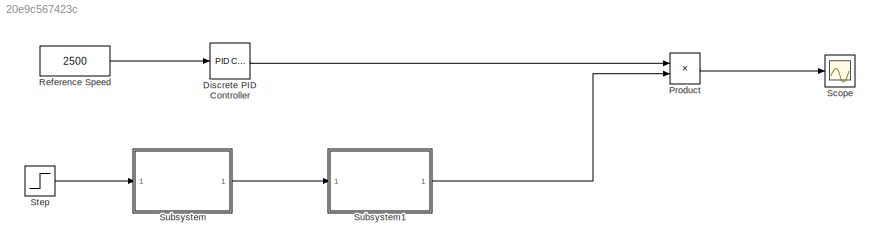
MODEL slx_20e9c567423c
KIND model
CONFIG AbsTol = auto
CONFIG EnableMultiTasking = off
CONFIG FixedStep = auto
CONFIG MaxStep = auto
CONFIG MinStep = auto
CONFIG RelTol = 1e-3
CONFIG SampleTimeConstraint = Unconstrained
CONFIG Solver = VariableStepAuto
CONFIG SolverName = VariableStepAuto
CONFIG StartTime = 0.0
CONFIG StopTime = 10.0
BLOCK [Reference] Discrete PID Controller  REF=simulink/Continuous/PID Controller
  Ports = [1, 1]
  SourceBlock = simulink/Continuous/PID Controller
  SourceProductBaseCode = SL
  SourceType = PID 1dof
BLOCK [Product] Product
  Ports = [2, 1]
BLOCK [Constant] Reference Speed
  Value = 2500
BLOCK [Scope] Scope
  Floating = off
  NumInputPorts = 1
  Ports = [1]
  ScopeSpecificationString = Simulink.scopes.TimeScopeBlockCfg('CurrentConfiguration', extmgr.ConfigurationSet(extmgr.Configuration('Core','General UI',true),extmgr.Configuration('Core','Source UI',true),extmgr.Configuration('Sources','WiredSimulink',true),extmgr.Configuration('Visuals','Time Domain',true,'SerializedDisplays',{struct('MinYLimReal','-1.00000','MaxYLimReal','1.00000','YLabelReal','','MinYLimMag','0.00000','MaxY...<+1389ch>
BLOCK [Step] Step
  SampleTime = 0
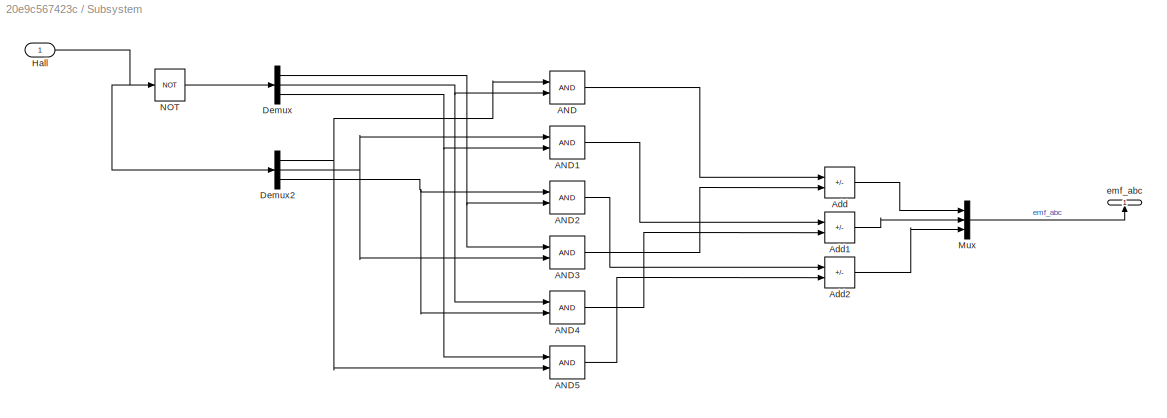
BLOCK [SubSystem] Subsystem
  Ports = [1, 1]
  RequestExecContextInheritance = off
BLOCK [Logic] Subsystem/AND
  AllPortsSameDT = off
  OutDataTypeStr = boolean
  Ports = [2, 1]
BLOCK [Logic] Subsystem/AND1
  AllPortsSameDT = off
  OutDataTypeStr = boolean
  Ports = [2, 1]
BLOCK [Logic] Subsystem/AND2
  AllPortsSameDT = off
  OutDataTypeStr = boolean
  Ports = [2, 1]
BLOCK [Logic] Subsystem/AND3
  AllPortsSameDT = off
  OutDataTypeStr = boolean
  Ports = [2, 1]
BLOCK [Logic] Subsystem/AND4
  AllPortsSameDT = off
  OutDataTypeStr = boolean
  Ports = [2, 1]
BLOCK [Logic] Subsystem/AND5
  AllPortsSameDT = off
  OutDataTypeStr = boolean
  Ports = [2, 1]
BLOCK [Sum] Subsystem/Add
  IconShape = rectangular
  Inputs = +-
  Ports = [2, 1]
BLOCK [Sum] Subsystem/Add1
  IconShape = rectangular
  Inputs = +-
  Ports = [2, 1]
BLOCK [Sum] Subsystem/Add2
  IconShape = rectangular
  Inputs = +-
  Ports = [2, 1]
BLOCK [Demux] Subsystem/Demux
  Outputs = 3
  Ports = [1, 3]
BLOCK [Demux] Subsystem/Demux2
  Outputs = 3
  Ports = [1, 3]
BLOCK [Inport] Subsystem/Hall
BLOCK [Mux] Subsystem/Mux
  DisplayOption = bar
  Inputs = 3
  Ports = [3, 1]
BLOCK [Logic] Subsystem/NOT
  AllPortsSameDT = off
  Operator = NOT
  OutDataTypeStr = boolean
  Ports = [1, 1]
BLOCK [Outport] Subsystem/emf_abc
  NameLocation = right
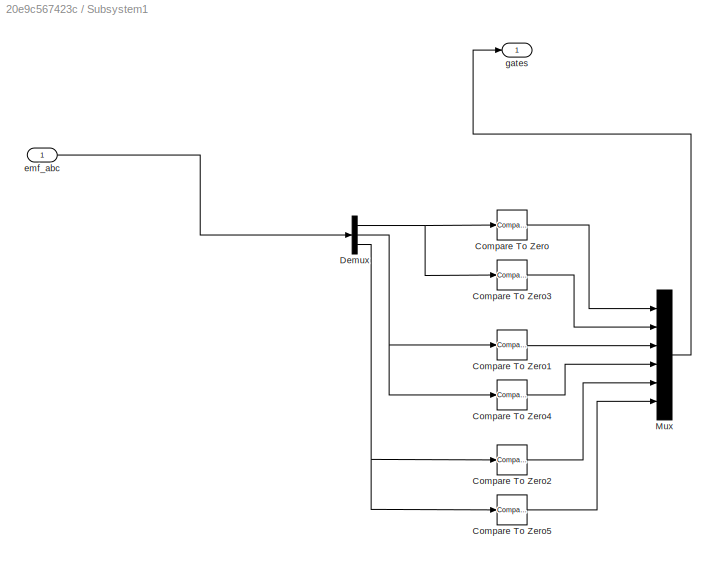
BLOCK [SubSystem] Subsystem1
  Ports = [1, 1]
  RequestExecContextInheritance = off
BLOCK [Reference] Subsystem1/Compare To Zero  REF=simulink/Logic and Bit
Operations/Compare
To Zero
  Ports = [1, 1]
  SourceBlock = simulink/Logic and Bit\nOperations/Compare\nTo Zero
  SourceProductBaseCode = SL
  SourceType = Compare To Zero
BLOCK [Reference] Subsystem1/Compare To Zero1  REF=simulink/Logic and Bit
Operations/Compare
To Zero
  Ports = [1, 1]
  SourceBlock = simulink/Logic and Bit\nOperations/Compare\nTo Zero
  SourceProductBaseCode = SL
  SourceType = Compare To Zero
BLOCK [Reference] Subsystem1/Compare To Zero2  REF=simulink/Logic and Bit
Operations/Compare
To Zero
  Ports = [1, 1]
  SourceBlock = simulink/Logic and Bit\nOperations/Compare\nTo Zero
  SourceProductBaseCode = SL
  SourceType = Compare To Zero
BLOCK [Reference] Subsystem1/Compare To Zero3  REF=simulink/Logic and Bit
Operations/Compare
To Zero
  Ports = [1, 1]
  SourceBlock = simulink/Logic and Bit\nOperations/Compare\nTo Zero
  SourceProductBaseCode = SL
  SourceType = Compare To Zero
BLOCK [Reference] Subsystem1/Compare To Zero4  REF=simulink/Logic and Bit
Operations/Compare
To Zero
  Ports = [1, 1]
  SourceBlock = simulink/Logic and Bit\nOperations/Compare\nTo Zero
  SourceProductBaseCode = SL
  SourceType = Compare To Zero
BLOCK [Reference] Subsystem1/Compare To Zero5  REF=simulink/Logic and Bit
Operations/Compare
To Zero
  Ports = [1, 1]
  SourceBlock = simulink/Logic and Bit\nOperations/Compare\nTo Zero
  SourceProductBaseCode = SL
  SourceType = Compare To Zero
BLOCK [Demux] Subsystem1/Demux
  Outputs = 3
  Ports = [1, 3]
BLOCK [Mux] Subsystem1/Mux
  DisplayOption = bar
  Inputs = 6
  Ports = [6, 1]
BLOCK [Inport] Subsystem1/emf_abc
BLOCK [Outport] Subsystem1/gates
LINE Discrete PID Controller:1 -> Product:1
LINE Product:1 -> Scope:1
LINE Reference Speed:1 -> Discrete PID Controller:1
LINE Step:1 -> Subsystem:1
LINE Subsystem/AND1:1 -> Subsystem/Add1:1
LINE Subsystem/AND2:1 -> Subsystem/Add2:1
LINE Subsystem/AND3:1 -> Subsystem/Add:2
LINE Subsystem/AND4:1 -> Subsystem/Add1:2
LINE Subsystem/AND5:1 -> Subsystem/Add2:2
LINE Subsystem/AND:1 -> Subsystem/Add:1
LINE Subsystem/Add1:1 -> Subsystem/Mux:2
LINE Subsystem/Add2:1 -> Subsystem/Mux:3
LINE Subsystem/Add:1 -> Subsystem/Mux:1
NET Subsystem/Demux2:1 -> Subsystem/AND5:2, Subsystem/AND:1
NET Subsystem/Demux2:2 -> Subsystem/AND1:1, Subsystem/AND3:2
NET Subsystem/Demux2:3 -> Subsystem/AND2:1, Subsystem/AND4:2
NET Subsystem/Demux:1 -> Subsystem/AND2:2, Subsystem/AND3:1
NET Subsystem/Demux:2 -> Subsystem/AND4:1, Subsystem/AND:2
NET Subsystem/Demux:3 -> Subsystem/AND1:2, Subsystem/AND5:1
NET Subsystem/Hall:1 -> Subsystem/Demux2:1, Subsystem/NOT:1
LINE Subsystem/Mux:1 -> Subsystem/emf_abc:1
LINE Subsystem/NOT:1 -> Subsystem/Demux:1
LINE Subsystem1/Compare To Zero1:1 -> Subsystem1/Mux:3
LINE Subsystem1/Compare To Zero2:1 -> Subsystem1/Mux:5
LINE Subsystem1/Compare To Zero3:1 -> Subsystem1/Mux:2
LINE Subsystem1/Compare To Zero4:1 -> Subsystem1/Mux:4
LINE Subsystem1/Compare To Zero5:1 -> Subsystem1/Mux:6
LINE Subsystem1/Compare To Zero:1 -> Subsystem1/Mux:1
NET Subsystem1/Demux:1 -> Subsystem1/Compare To Zero3:1, Subsystem1/Compare To Zero:1
NET Subsystem1/Demux:2 -> Subsystem1/Compare To Zero1:1, Subsystem1/Compare To Zero4:1
NET Subsystem1/Demux:3 -> Subsystem1/Compare To Zero2:1, Subsystem1/Compare To Zero5:1
LINE Subsystem1/Mux:1 -> Subsystem1/gates:1
LINE Subsystem1/emf_abc:1 -> Subsystem1/Demux:1
LINE Subsystem1:1 -> Product:2
LINE Subsystem:1 -> Subsystem1:1
note: NET lines group one-source signal fan-out (src -> all destinations, sorted); 1:1 wires keep LINE
